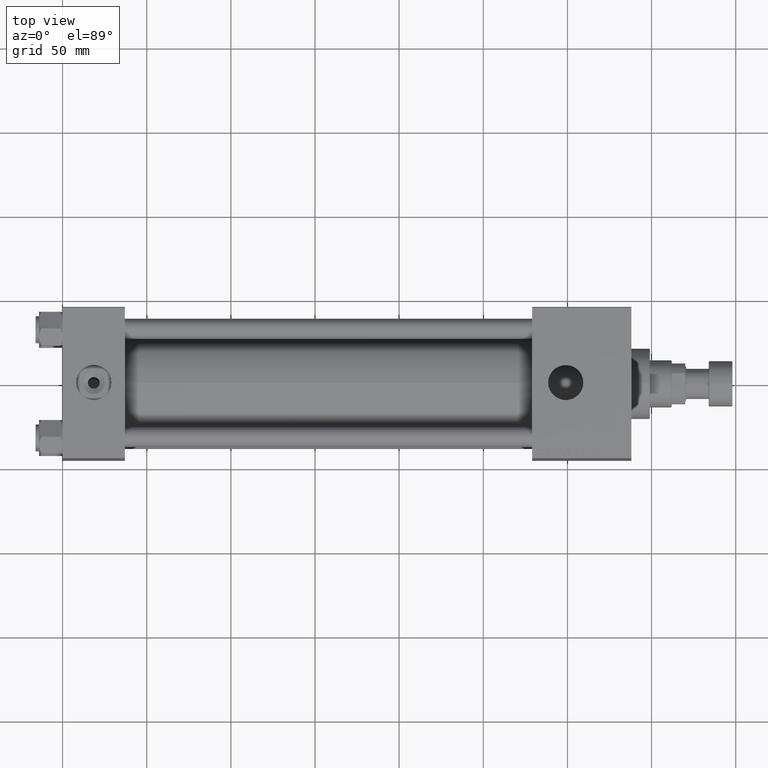
[diagram: clean part render]
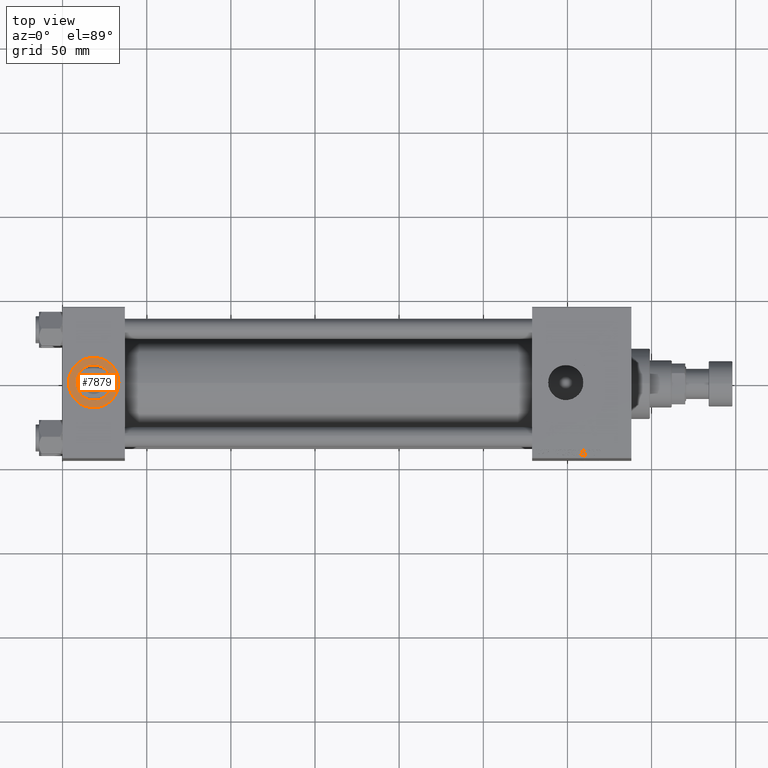
[diagram: same view with one face highlighted and labeled with its STEP entity id]
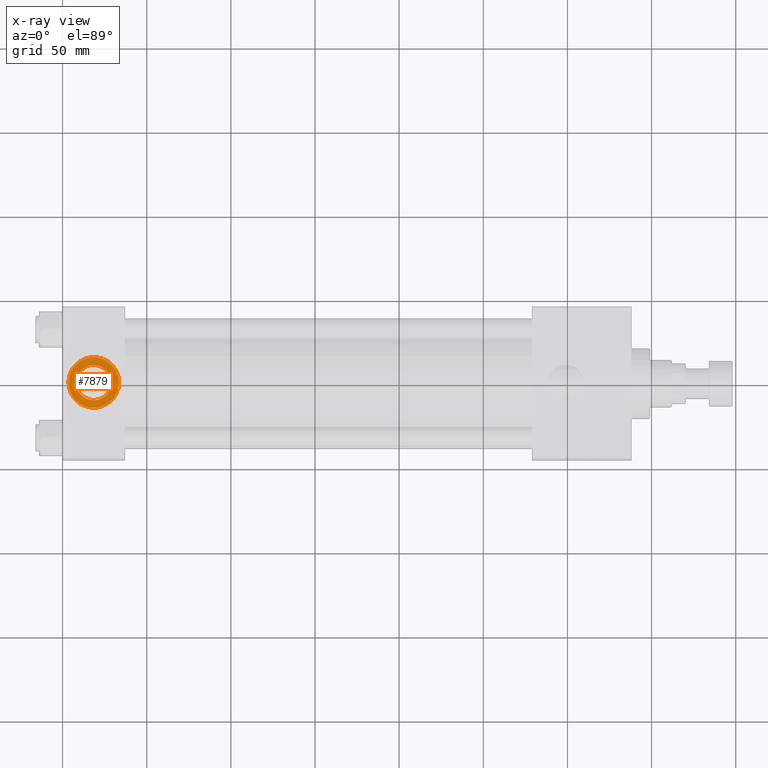
[diagram: x-ray of the same camera — body ghosted, the highlighted face saturated]
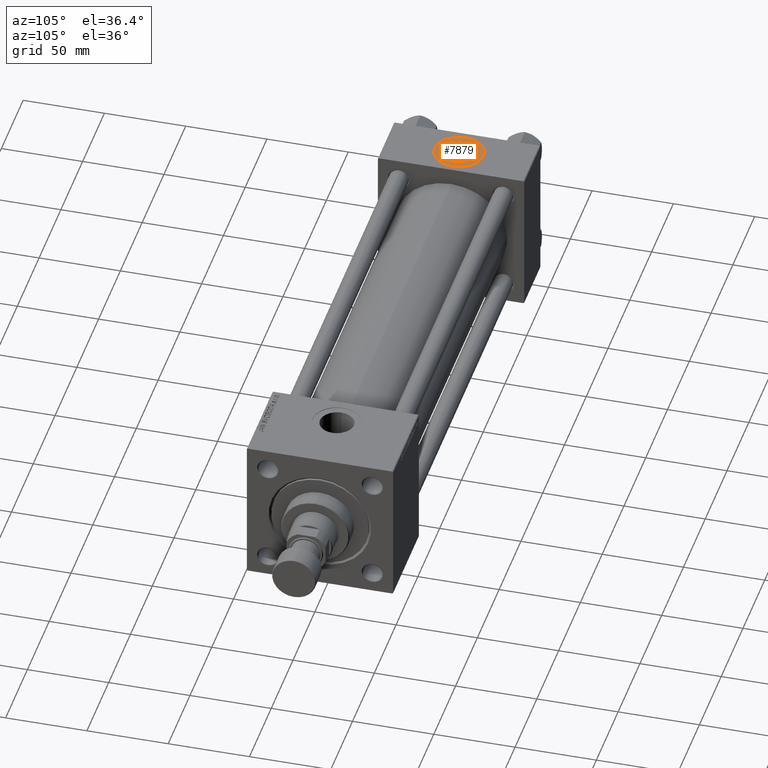
[diagram: same view with one face highlighted and labeled with its STEP entity id]
A machine part, top view. The second image highlights one B-rep face of the part: STEP entity #7879.
The next image is the same camera in x-ray: the body ghosted, the highlighted face saturated — about 0% of this face is hidden behind the body in this view.
A second angle (auxiliary view) of the same face is appended — the face is thin or edge-on in the first view.
In plain terms, the highlighted planar face has unit normal (0, 0, 1).
Its self-contained STEP definition (entity closure, byte-faithful):
#256 = ORIENTED_EDGE ( 'NONE', *, *, #24076, .T. ) ;
#3389 = CIRCLE ( 'NONE', #28085, 10.48000000000000043 ) ;
#4920 = EDGE_LOOP ( 'NONE', ( #256, #28410 ) ) ;
#5349 = EDGE_CURVE ( 'NONE', #30805, #44838, #3389, .T. ) ;
#7254 = CARTESIAN_POINT ( 'NONE',  ( 8.019999999999999574, -7.390187534377611561E-15, 44.80000000000000426 ) ) ;
#7627 = DIRECTION ( 'NONE',  ( 1.000000000000000000, 0.000000000000000000, 0.000000000000000000 ) ) ;
#7879 = ADVANCED_FACE ( 'NONE', ( #8921, #44432 ), #28169, .T. ) ;
#8921 = FACE_BOUND ( 'NONE', #19370, .T. ) ;
#9990 = CIRCLE ( 'NONE', #37276, 15.00000000000000355 ) ;
#12784 = CIRCLE ( 'NONE', #23868, 10.48000000000000043 ) ;
#14584 = DIRECTION ( 'NONE',  ( 0.000000000000000000, 0.000000000000000000, 1.000000000000000000 ) ) ;
#18301 = CARTESIAN_POINT ( 'NONE',  ( 18.50000000000000000, -8.673617379884038628E-15, 44.80000000000000426 ) ) ;
#18504 = DIRECTION ( 'NONE',  ( 0.000000000000000000, 0.000000000000000000, 1.000000000000000000 ) ) ;
#19370 = EDGE_LOOP ( 'NONE', ( #28660, #31588 ) ) ;
#20694 = DIRECTION ( 'NONE',  ( 0.000000000000000000, 0.000000000000000000, 1.000000000000000000 ) ) ;
#22499 = VERTEX_POINT ( 'NONE', #45365 ) ;
#22524 = CARTESIAN_POINT ( 'NONE',  ( 18.50000000000000000, -8.673617379884038628E-15, 44.80000000000000426 ) ) ;
#23565 = DIRECTION ( 'NONE',  ( 1.000000000000000000, 0.000000000000000000, 0.000000000000000000 ) ) ;
#23868 = AXIS2_PLACEMENT_3D ( 'NONE', #22524, #18504, #23565 ) ;
#24076 = EDGE_CURVE ( 'NONE', #22499, #35087, #9990, .T. ) ;
#25255 = DIRECTION ( 'NONE',  ( 1.000000000000000000, 0.000000000000000000, 0.000000000000000000 ) ) ;
#25431 = EDGE_CURVE ( 'NONE', #35087, #22499, #29659, .T. ) ;
#27181 = CARTESIAN_POINT ( 'NONE',  ( 3.499999999999997780, -6.836647181163008250E-15, 44.80000000000000426 ) ) ;
#28085 = AXIS2_PLACEMENT_3D ( 'NONE', #43472, #50668, #51196 ) ;
#28169 = PLANE ( 'NONE',  #38284 ) ;
#28410 = ORIENTED_EDGE ( 'NONE', *, *, #25431, .T. ) ;
#28660 = ORIENTED_EDGE ( 'NONE', *, *, #5349, .F. ) ;
#29062 = CARTESIAN_POINT ( 'NONE',  ( 28.98000000000000043, -8.673617379884038628E-15, 44.80000000000000426 ) ) ;
#29659 = CIRCLE ( 'NONE', #44967, 15.00000000000000355 ) ;
#30805 = VERTEX_POINT ( 'NONE', #29062 ) ;
#31588 = ORIENTED_EDGE ( 'NONE', *, *, #52437, .F. ) ;
#32958 = CARTESIAN_POINT ( 'NONE',  ( 18.50000000000000000, -8.673617379884038628E-15, 44.80000000000000426 ) ) ;
#35087 = VERTEX_POINT ( 'NONE', #27181 ) ;
#37276 = AXIS2_PLACEMENT_3D ( 'NONE', #18301, #42555, #25255 ) ;
#38284 = AXIS2_PLACEMENT_3D ( 'NONE', #32958, #20694, #45216 ) ;
#39915 = CARTESIAN_POINT ( 'NONE',  ( 18.50000000000000000, -8.673617379884038628E-15, 44.80000000000000426 ) ) ;
#42555 = DIRECTION ( 'NONE',  ( 0.000000000000000000, 0.000000000000000000, 1.000000000000000000 ) ) ;
#43472 = CARTESIAN_POINT ( 'NONE',  ( 18.50000000000000000, -8.673617379884038628E-15, 44.80000000000000426 ) ) ;
#44432 = FACE_OUTER_BOUND ( 'NONE', #4920, .T. ) ;
#44838 = VERTEX_POINT ( 'NONE', #7254 ) ;
#44967 = AXIS2_PLACEMENT_3D ( 'NONE', #39915, #14584, #7627 ) ;
#45216 = DIRECTION ( 'NONE',  ( 1.000000000000000000, 0.000000000000000000, -0.000000000000000000 ) ) ;
#45365 = CARTESIAN_POINT ( 'NONE',  ( 33.50000000000000000, -8.673617379884038628E-15, 44.80000000000000426 ) ) ;
#50668 = DIRECTION ( 'NONE',  ( 0.000000000000000000, 0.000000000000000000, 1.000000000000000000 ) ) ;
#51196 = DIRECTION ( 'NONE',  ( 1.000000000000000000, 0.000000000000000000, 0.000000000000000000 ) ) ;
#52437 = EDGE_CURVE ( 'NONE', #44838, #30805, #12784, .T. ) ;